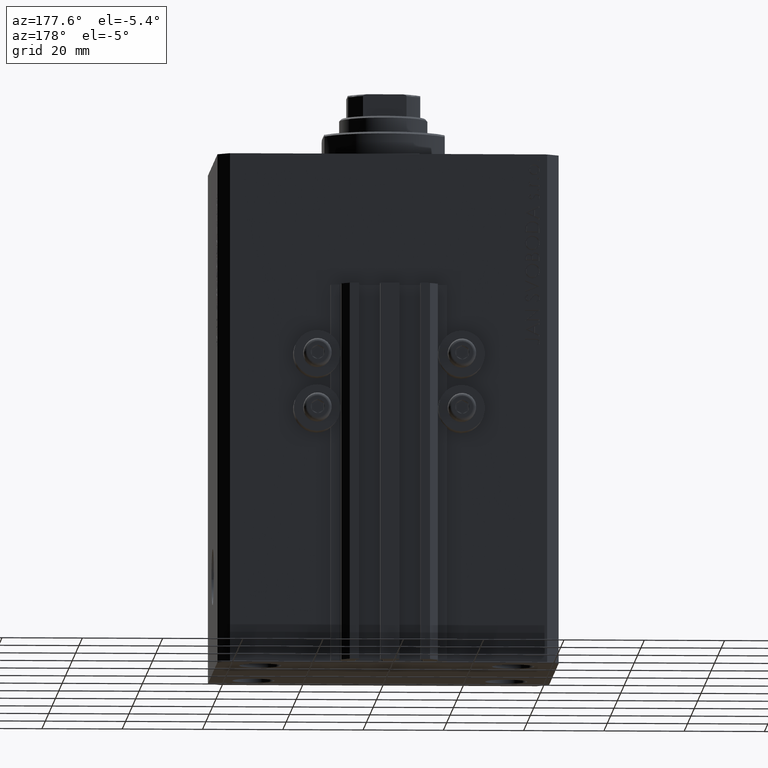
[diagram: clean part render]
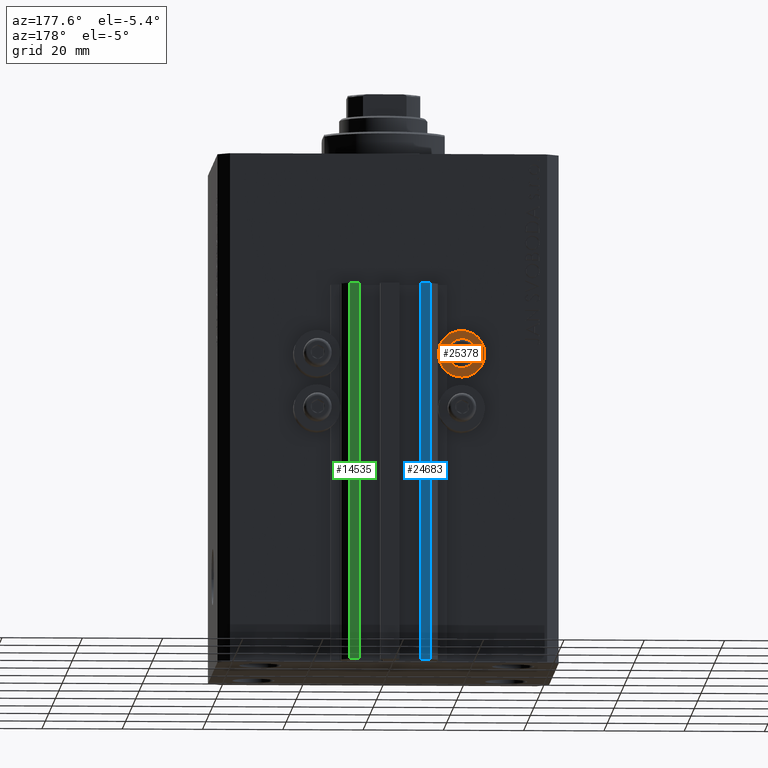
[diagram: same view with three faces highlighted in distinct colors, each labeled with its STEP entity id]
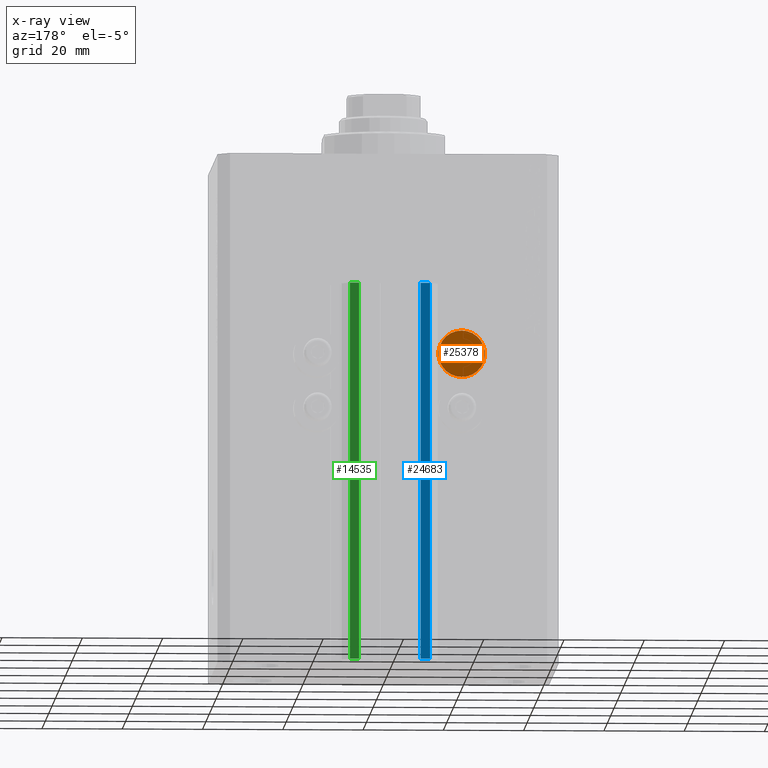
[diagram: x-ray of the same camera — body ghosted, the three highlighted faces saturated]
A machine part, auxiliary view with three faces highlighted in distinct colors.
The next image is the same camera in x-ray (body ghosted, the three faces saturated) — at least one of them is partly hidden behind the body in this view.
Their STEP definitions:

[orange] entity #25378 — the highlighted planar face has unit normal (0, -1, 0).
#289 = DIRECTION ( 'NONE',  ( 0.000000000000000000, -1.000000000000000000, 0.000000000000000000 ) ) ;
#3292 = AXIS2_PLACEMENT_3D ( 'NONE', #4144, #37088, #26345 ) ;
#3474 = EDGE_LOOP ( 'NONE', ( #7574, #40712 ) ) ;
#4107 = CARTESIAN_POINT ( 'NONE',  ( -12.20000000000000284, 36.49999999996099120, -50.39999999999999858 ) ) ;
#4144 = CARTESIAN_POINT ( 'NONE',  ( -18.00000000000000355, 36.49999999996099120, -50.39999999999999858 ) ) ;
#4157 = CARTESIAN_POINT ( 'NONE',  ( -18.00000000000000355, 36.49999999996099120, -50.39999999999999858 ) ) ;
#4511 = EDGE_CURVE ( 'NONE', #5295, #34300, #31336, .T. ) ;
#5295 = VERTEX_POINT ( 'NONE', #33576 ) ;
#5681 = VERTEX_POINT ( 'NONE', #16560 ) ;
#6554 = CIRCLE ( 'NONE', #22550, 2.000000000000001776 ) ;
#6921 = CARTESIAN_POINT ( 'NONE',  ( -18.00000000000000355, 36.49999999996099120, -50.39999999999999858 ) ) ;
#7320 = DIRECTION ( 'NONE',  ( -0.000000000000000000, 1.000000000000000000, -0.000000000000000000 ) ) ;
#7574 = ORIENTED_EDGE ( 'NONE', *, *, #17028, .F. ) ;
#7735 = DIRECTION ( 'NONE',  ( -0.000000000000000000, 1.000000000000000000, -0.000000000000000000 ) ) ;
#9392 = CIRCLE ( 'NONE', #3292, 2.000000000000001776 ) ;
#13125 = VERTEX_POINT ( 'NONE', #19621 ) ;
#16560 = CARTESIAN_POINT ( 'NONE',  ( -18.00000000000000355, 36.49999999996099120, -52.40000000000000568 ) ) ;
#17028 = EDGE_CURVE ( 'NONE', #13125, #5681, #6554, .T. ) ;
#18728 = DIRECTION ( 'NONE',  ( 0.000000000000000000, 0.000000000000000000, 1.000000000000000000 ) ) ;
#18856 = DIRECTION ( 'NONE',  ( 0.000000000000000000, 1.000000000000000000, 0.000000000000000000 ) ) ;
#19621 = CARTESIAN_POINT ( 'NONE',  ( -18.00000000000000355, 36.49999999996099120, -48.39999999999999858 ) ) ;
#20405 = AXIS2_PLACEMENT_3D ( 'NONE', #4107, #289, #39450 ) ;
#21926 = EDGE_CURVE ( 'NONE', #34300, #5295, #27927, .T. ) ;
#22550 = AXIS2_PLACEMENT_3D ( 'NONE', #6921, #18856, #29596 ) ;
#25126 = EDGE_LOOP ( 'NONE', ( #39768, #32165 ) ) ;
#25378 = ADVANCED_FACE ( 'NONE', ( #32993, #25599 ), #39912, .F. ) ;
#25599 = FACE_OUTER_BOUND ( 'NONE', #25126, .T. ) ;
#26345 = DIRECTION ( 'NONE',  ( 0.000000000000000000, 0.000000000000000000, 1.000000000000000000 ) ) ;
#27927 = CIRCLE ( 'NONE', #40872, 5.799999999999999822 ) ;
#29596 = DIRECTION ( 'NONE',  ( 0.000000000000000000, 0.000000000000000000, 1.000000000000000000 ) ) ;
#31336 = CIRCLE ( 'NONE', #44322, 5.799999999999999822 ) ;
#32165 = ORIENTED_EDGE ( 'NONE', *, *, #21926, .T. ) ;
#32993 = FACE_BOUND ( 'NONE', #3474, .T. ) ;
#33576 = CARTESIAN_POINT ( 'NONE',  ( -18.00000000000000355, 36.49999999996099120, -44.60000000000000142 ) ) ;
#34300 = VERTEX_POINT ( 'NONE', #41118 ) ;
#36444 = CARTESIAN_POINT ( 'NONE',  ( -18.00000000000000355, 36.49999999996099120, -50.39999999999999858 ) ) ;
#37088 = DIRECTION ( 'NONE',  ( 0.000000000000000000, 1.000000000000000000, 0.000000000000000000 ) ) ;
#39450 = DIRECTION ( 'NONE',  ( 0.000000000000000000, -0.000000000000000000, -1.000000000000000000 ) ) ;
#39552 = DIRECTION ( 'NONE',  ( 0.000000000000000000, 0.000000000000000000, 1.000000000000000000 ) ) ;
#39768 = ORIENTED_EDGE ( 'NONE', *, *, #4511, .T. ) ;
#39912 = PLANE ( 'NONE',  #20405 ) ;
#40712 = ORIENTED_EDGE ( 'NONE', *, *, #43100, .F. ) ;
#40872 = AXIS2_PLACEMENT_3D ( 'NONE', #4157, #7735, #18728 ) ;
#41118 = CARTESIAN_POINT ( 'NONE',  ( -18.00000000000000355, 36.49999999996099120, -56.20000000000000284 ) ) ;
#43100 = EDGE_CURVE ( 'NONE', #5681, #13125, #9392, .T. ) ;
#44322 = AXIS2_PLACEMENT_3D ( 'NONE', #36444, #7320, #39552 ) ;

[blue] entity #24683 — the highlighted planar face has unit normal (0, 1, 0).
#821 = VECTOR ( 'NONE', #10507, 1000.000000000000000 ) ;
#2751 = CARTESIAN_POINT ( 'NONE',  ( -7.650000000000002132, 39.49999999999999289, -127.0000000000000000 ) ) ;
#4271 = CARTESIAN_POINT ( 'NONE',  ( -10.00000000000000000, 39.49999999999999289, -33.00000000000000000 ) ) ;
#5128 = CARTESIAN_POINT ( 'NONE',  ( -10.00000000000000000, 39.49999999999999289, -127.0000000000000000 ) ) ;
#6562 = PLANE ( 'NONE',  #26500 ) ;
#7479 = VERTEX_POINT ( 'NONE', #18430 ) ;
#8388 = VECTOR ( 'NONE', #44265, 1000.000000000000000 ) ;
#10507 = DIRECTION ( 'NONE',  ( -1.000000000000000000, 0.000000000000000000, 0.000000000000000000 ) ) ;
#11541 = EDGE_CURVE ( 'NONE', #21207, #7479, #43433, .T. ) ;
#12049 = ORIENTED_EDGE ( 'NONE', *, *, #36643, .F. ) ;
#15031 = DIRECTION ( 'NONE',  ( 0.000000000000000000, 0.000000000000000000, 1.000000000000000000 ) ) ;
#15882 = VERTEX_POINT ( 'NONE', #35950 ) ;
#16093 = LINE ( 'NONE', #30645, #8388 ) ;
#18430 = CARTESIAN_POINT ( 'NONE',  ( -7.650000000000002132, 39.49999999999999289, -33.00000000000000000 ) ) ;
#19463 = LINE ( 'NONE', #5128, #34317 ) ;
#20110 = EDGE_LOOP ( 'NONE', ( #12049, #34954, #32787, #27030 ) ) ;
#21207 = VERTEX_POINT ( 'NONE', #45043 ) ;
#21944 = CARTESIAN_POINT ( 'NONE',  ( -7.650000000000002132, 39.49999999999999289, -127.0000000000000000 ) ) ;
#24683 = ADVANCED_FACE ( 'NONE', ( #25179 ), #6562, .T. ) ;
#25179 = FACE_OUTER_BOUND ( 'NONE', #20110, .T. ) ;
#26500 = AXIS2_PLACEMENT_3D ( 'NONE', #2751, #39730, #39265 ) ;
#27030 = ORIENTED_EDGE ( 'NONE', *, *, #35171, .T. ) ;
#28660 = CARTESIAN_POINT ( 'NONE',  ( -7.650000000000002132, 39.49999999999999289, -33.00000000000000000 ) ) ;
#29735 = DIRECTION ( 'NONE',  ( 0.000000000000000000, 0.000000000000000000, 1.000000000000000000 ) ) ;
#30645 = CARTESIAN_POINT ( 'NONE',  ( -7.650000000000002132, 39.49999999999999289, -127.0000000000000000 ) ) ;
#32787 = ORIENTED_EDGE ( 'NONE', *, *, #36048, .T. ) ;
#34317 = VECTOR ( 'NONE', #29735, 1000.000000000000000 ) ;
#34954 = ORIENTED_EDGE ( 'NONE', *, *, #11541, .F. ) ;
#35171 = EDGE_CURVE ( 'NONE', #15882, #44141, #19463, .T. ) ;
#35950 = CARTESIAN_POINT ( 'NONE',  ( -10.00000000000000000, 39.49999999999999289, -127.0000000000000000 ) ) ;
#36048 = EDGE_CURVE ( 'NONE', #21207, #15882, #16093, .T. ) ;
#36643 = EDGE_CURVE ( 'NONE', #7479, #44141, #43203, .T. ) ;
#39265 = DIRECTION ( 'NONE',  ( 0.000000000000000000, 0.000000000000000000, 1.000000000000000000 ) ) ;
#39281 = VECTOR ( 'NONE', #15031, 1000.000000000000000 ) ;
#39730 = DIRECTION ( 'NONE',  ( 0.000000000000000000, 1.000000000000000000, -0.000000000000000000 ) ) ;
#43203 = LINE ( 'NONE', #28660, #821 ) ;
#43433 = LINE ( 'NONE', #21944, #39281 ) ;
#44141 = VERTEX_POINT ( 'NONE', #4271 ) ;
#44265 = DIRECTION ( 'NONE',  ( -1.000000000000000000, 0.000000000000000000, 0.000000000000000000 ) ) ;
#45043 = CARTESIAN_POINT ( 'NONE',  ( -7.650000000000002132, 39.49999999999999289, -127.0000000000000000 ) ) ;

[green] entity #14535 — the highlighted planar face has unit normal (0, 1, 0).
#523 = VECTOR ( 'NONE', #2881, 1000.000000000000000 ) ;
#750 = EDGE_CURVE ( 'NONE', #2141, #18448, #7196, .T. ) ;
#2141 = VERTEX_POINT ( 'NONE', #12976 ) ;
#2881 = DIRECTION ( 'NONE',  ( 0.000000000000000000, 0.000000000000000000, 1.000000000000000000 ) ) ;
#3587 = FACE_OUTER_BOUND ( 'NONE', #29799, .T. ) ;
#4510 = CARTESIAN_POINT ( 'NONE',  ( 7.649999999999998579, 39.50000000000002132, -127.0000000000000000 ) ) ;
#7196 = LINE ( 'NONE', #36322, #36522 ) ;
#7541 = VECTOR ( 'NONE', #46201, 1000.000000000000000 ) ;
#10520 = PLANE ( 'NONE',  #11051 ) ;
#11051 = AXIS2_PLACEMENT_3D ( 'NONE', #13635, #36288, #46574 ) ;
#11769 = VERTEX_POINT ( 'NONE', #4510 ) ;
#12976 = CARTESIAN_POINT ( 'NONE',  ( 9.999999999999998224, 39.50000000000002132, -33.00000000000000000 ) ) ;
#13635 = CARTESIAN_POINT ( 'NONE',  ( 9.999999999999998224, 39.50000000000002132, -127.0000000000000000 ) ) ;
#14430 = VERTEX_POINT ( 'NONE', #16269 ) ;
#14535 = ADVANCED_FACE ( 'NONE', ( #3587 ), #10520, .T. ) ;
#16269 = CARTESIAN_POINT ( 'NONE',  ( 9.999999999999998224, 39.50000000000002132, -127.0000000000000000 ) ) ;
#17800 = CARTESIAN_POINT ( 'NONE',  ( 7.649999999999998579, 39.50000000000002132, -33.00000000000000000 ) ) ;
#18423 = DIRECTION ( 'NONE',  ( -1.000000000000000000, 0.000000000000000000, 0.000000000000000000 ) ) ;
#18448 = VERTEX_POINT ( 'NONE', #17800 ) ;
#20790 = LINE ( 'NONE', #39628, #523 ) ;
#21544 = DIRECTION ( 'NONE',  ( 0.000000000000000000, 0.000000000000000000, 1.000000000000000000 ) ) ;
#23057 = EDGE_CURVE ( 'NONE', #11769, #18448, #28718, .T. ) ;
#23324 = EDGE_CURVE ( 'NONE', #14430, #2141, #20790, .T. ) ;
#27971 = EDGE_CURVE ( 'NONE', #14430, #11769, #42137, .T. ) ;
#28355 = ORIENTED_EDGE ( 'NONE', *, *, #23324, .F. ) ;
#28718 = LINE ( 'NONE', #43733, #43966 ) ;
#29799 = EDGE_LOOP ( 'NONE', ( #33785, #28355, #40164, #31770 ) ) ;
#31770 = ORIENTED_EDGE ( 'NONE', *, *, #23057, .T. ) ;
#33785 = ORIENTED_EDGE ( 'NONE', *, *, #750, .F. ) ;
#36288 = DIRECTION ( 'NONE',  ( 0.000000000000000000, 1.000000000000000000, -0.000000000000000000 ) ) ;
#36322 = CARTESIAN_POINT ( 'NONE',  ( 9.999999999999998224, 39.50000000000002132, -33.00000000000000000 ) ) ;
#36522 = VECTOR ( 'NONE', #18423, 1000.000000000000000 ) ;
#39628 = CARTESIAN_POINT ( 'NONE',  ( 9.999999999999998224, 39.50000000000002132, -127.0000000000000000 ) ) ;
#40164 = ORIENTED_EDGE ( 'NONE', *, *, #27971, .T. ) ;
#42137 = LINE ( 'NONE', #46437, #7541 ) ;
#43733 = CARTESIAN_POINT ( 'NONE',  ( 7.649999999999998579, 39.50000000000002132, -127.0000000000000000 ) ) ;
#43966 = VECTOR ( 'NONE', #21544, 1000.000000000000000 ) ;
#46201 = DIRECTION ( 'NONE',  ( -1.000000000000000000, 0.000000000000000000, 0.000000000000000000 ) ) ;
#46437 = CARTESIAN_POINT ( 'NONE',  ( 9.999999999999998224, 39.50000000000002132, -127.0000000000000000 ) ) ;
#46574 = DIRECTION ( 'NONE',  ( 0.000000000000000000, 0.000000000000000000, 1.000000000000000000 ) ) ;